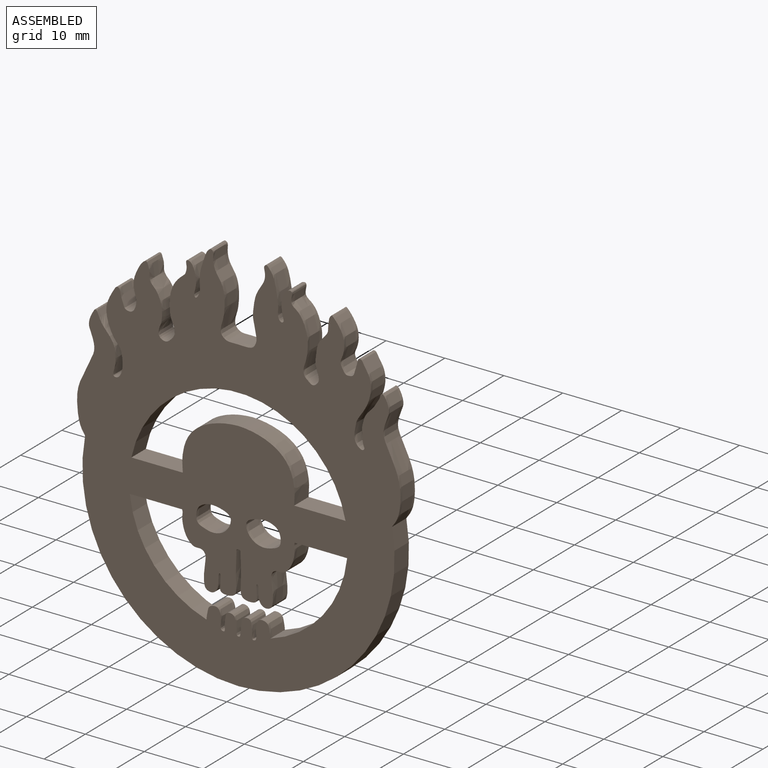
[diagram: assembled view]
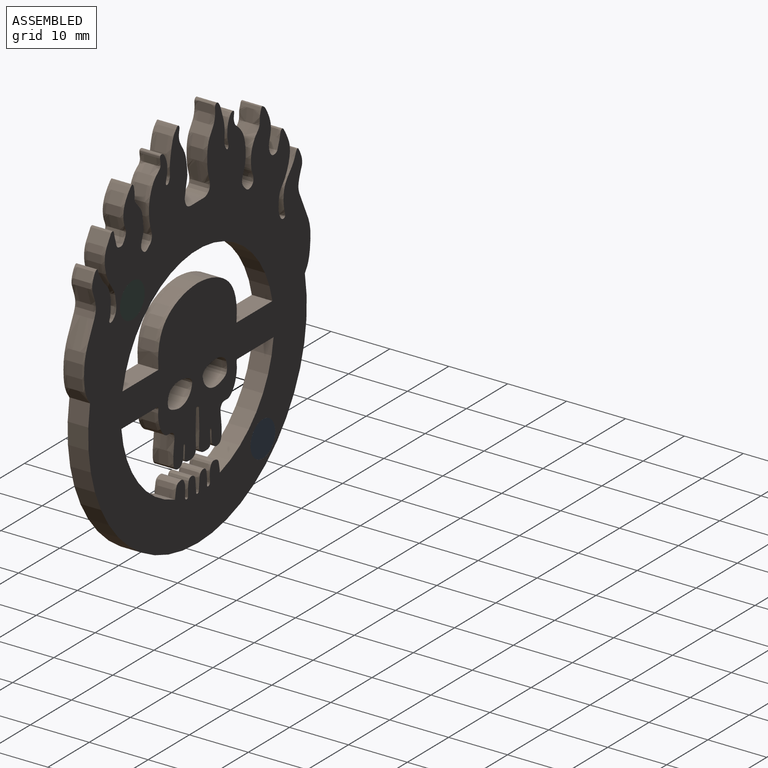
[diagram: assembled view, second angle]
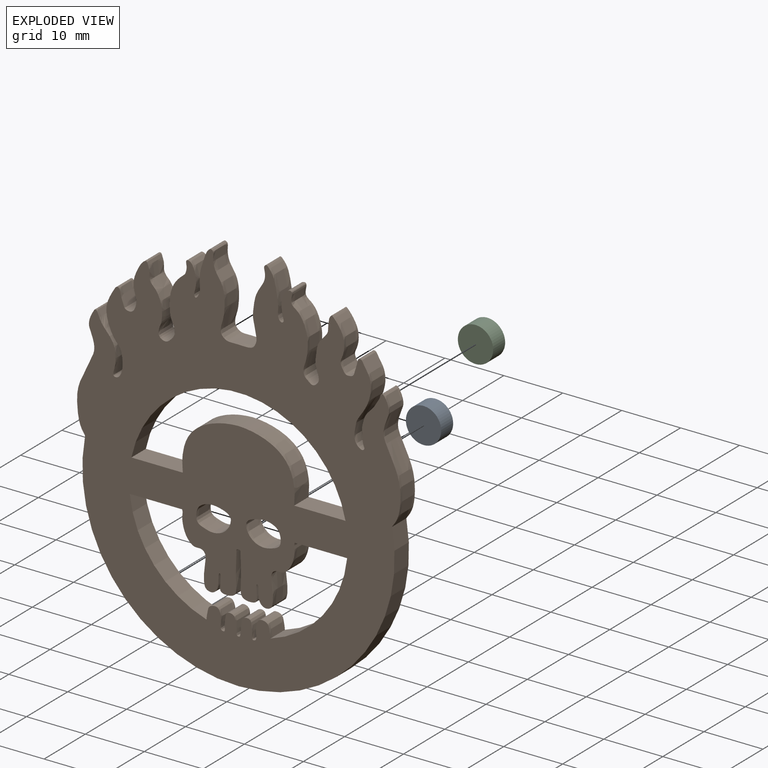
[diagram: exploded view]
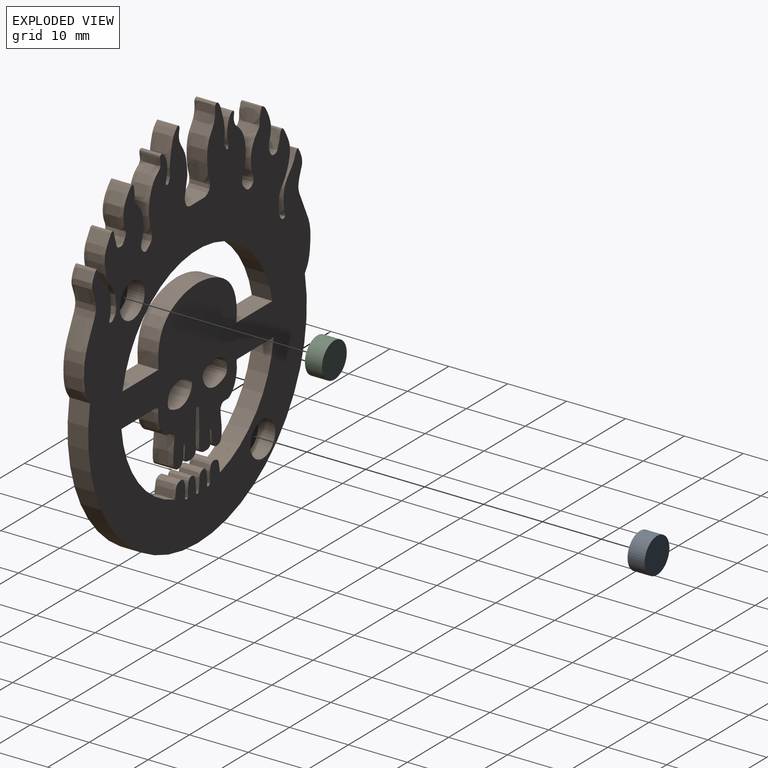
[diagram: exploded view, second angle]
ASSEMBLY  parts=3 mates=2
PART A: 3 faces, bbox 6x2.9x6 mm
  f0: cylinder r=3mm len=6mm, axis (0,1,0), area 54.7mm2, adj f1,f2
  f1: plane 6x6mm, normal (0,-1,0), area 28.3mm2, adj f0
  f2: plane 6x6mm, normal (0,1,0), area 28.3mm2, adj f0
PART B: 24 faces, bbox 55x3.5x65.9 mm
  f0: extruded ~5.42x3.58mm, area 53.6mm2, adj f4,f15,f16,f23
  f1: plane 8.86x3.5mm, normal (0,0,-1), area 31mm2, adj f14,f15,f16,f23
  f2: plane 8.71x3.5mm, normal (0,0,1), area 30.5mm2, adj f9,f15,f16,f22
  f3: plane 8.71x3.5mm, normal (0,0,1), area 30.5mm2, adj f13,f15,f16,f22
  f4: extruded ~5.42x3.58mm, area 53.6mm2, adj f0,f15,f16,f21
  f5: extruded ~11.38x9.59mm, area 112.1mm2, adj f6,f14,f15,f16
  f6: plane 8.86x3.5mm, normal (0,0,-1), area 31mm2, adj f5,f15,f16,f21
  f7: cylinder r=26.5mm len=53mm, axis (0,1,0), area 326.1mm2, adj f8,f10,f15,f16
  f8: extruded ~33.43x27.45mm, area 427.8mm2, adj f7,f10,f15,f16
  f9: extruded ~9.69x9.54mm, area 55mm2, adj f2,f13,f15,f16
  f10: extruded ~33.89x27.39mm, area 459.8mm2, adj f7,f8,f15,f16
  f11: extruded ~5.88x4.21mm, area 56.5mm2, adj f15,f16
  f12: extruded ~5.88x4.21mm, area 56.5mm2, adj f15,f16
  f13: extruded ~9.69x9.54mm, area 55mm2, adj f3,f9,f15,f16
  f14: extruded ~11.38x9.59mm, area 112.1mm2, adj f1,f5,f15,f16
  f15: plane 65.94x55.03mm, normal (0,-1,0), area 2110.5mm2, adj f0,f1,f2,f3,f4,f5,f6,f7
  f16: plane 65.94x55.03mm, normal (0,1,0), area 2053.8mm2, adj f0,f1,f2,f3,f4,f5,f6,f7
  f17: cylinder r=3.01mm len=6.01mm, axis (0,1,0), area 54.8mm2, adj f16,f18
  f18: plane 6.01x6.01mm, normal (0,1,0), area 28.4mm2, adj f17
  f19: cylinder r=3mm len=6mm, axis (0,1,0), area 54.7mm2, adj f16,f20
  f20: plane 6x6mm, normal (0,1,0), area 28.3mm2, adj f19
  f21: cylinder r=18.55mm len=15.81mm, axis (0,-1,0), area 76mm2, adj f4,f6,f15,f16
  f22: cylinder r=18.55mm len=36.34mm, axis (0,-1,0), area 177.7mm2, adj f2,f3,f15,f16
  f23: cylinder r=18.55mm len=15.81mm, axis (0,-1,0), area 76mm2, adj f0,f1,f15,f16
PART C: same geometry as A
PLACE A t=(-45.87,-13.64,-16.02)mm
PLACE B t=(-30.02,-13.64,3.36)mm
PLACE C t=(-14.22,-13.64,17.32)mm
MATE slider A.f0 <-> B.f17  axis (0,-1,0) through (-45.87,-16.54,-16.02)mm
MATE slider C.f0 <-> B.f19  axis (0,-1,0) through (-14.22,-16.54,17.32)mm
